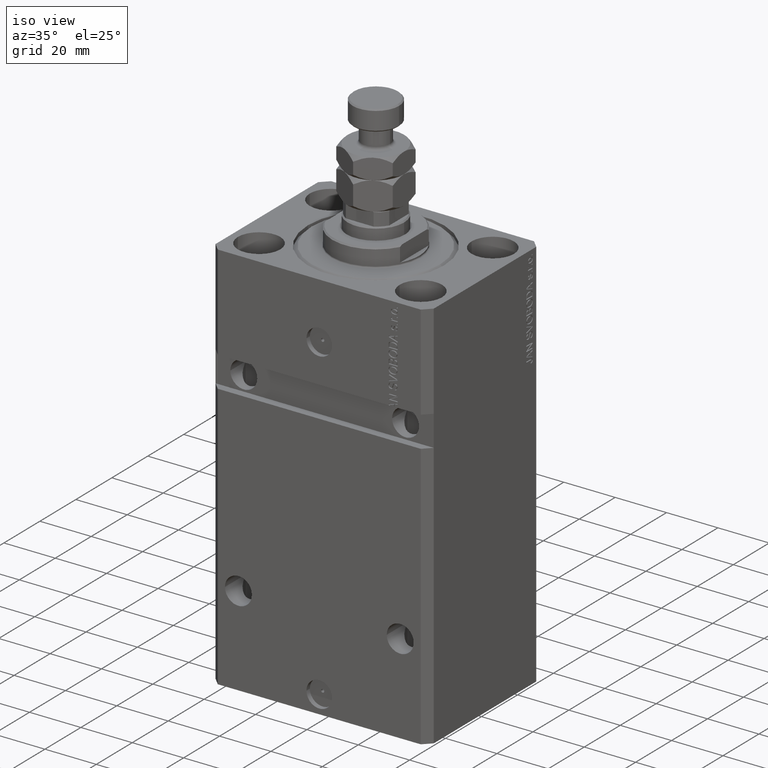
[diagram: clean part render]
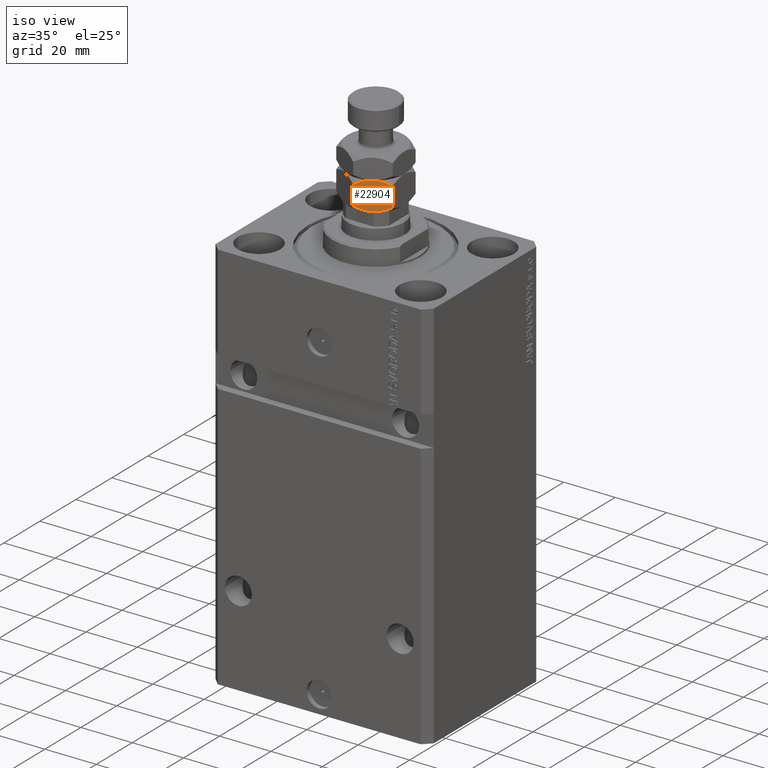
[diagram: same view with one face highlighted and labeled with its STEP entity id]
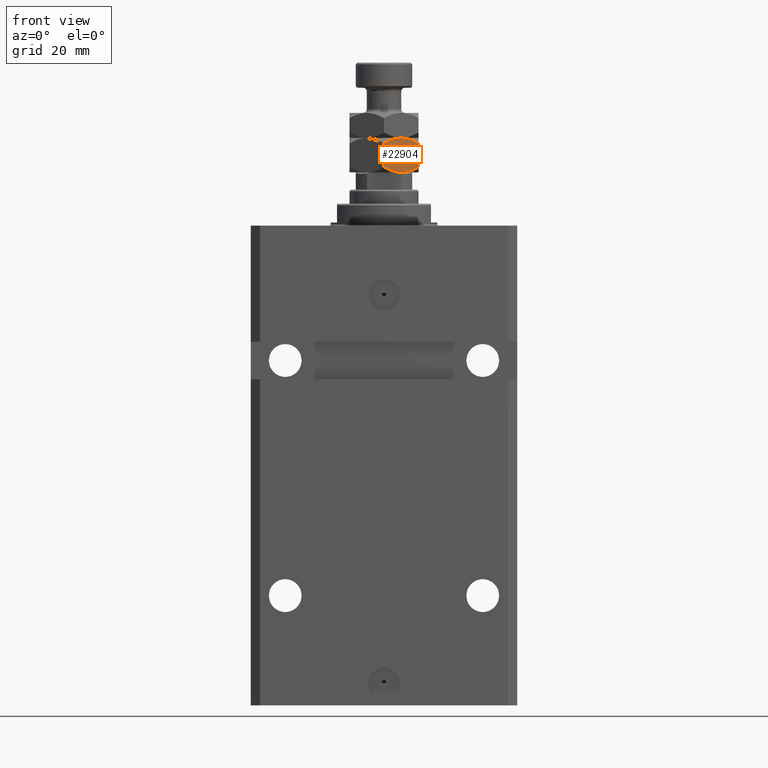
[diagram: same view with one face highlighted and labeled with its STEP entity id]
A machine part, iso view. The second image highlights one B-rep face of the part: STEP entity #22904.
A second angle (front view) of the same face is appended — the face is thin or edge-on in the first view.
In plain terms, the highlighted planar face has unit normal (-0.5, 0.866, 0).
Its self-contained STEP definition (entity closure, byte-faithful):
#343 = CARTESIAN_POINT ( 'NONE',  ( 3.602926119288148321, -10.62155555733041545, 0.1689086083647563796 ) ) ;
#587 = CARTESIAN_POINT ( 'NONE',  ( 4.543329525579419936, -10.07861339756131258, -1.661878642512936674E-15 ) ) ;
#981 = CARTESIAN_POINT ( 'NONE',  ( 3.115032419653385176, -10.90324111615047364, 10.67178078790959717 ) ) ;
#1207 = EDGE_CURVE ( 'NONE', #48517, #19265, #5165, .T. ) ;
#1685 = VERTEX_POINT ( 'NONE', #29080 ) ;
#4192 = DIRECTION ( 'NONE',  ( -0.8660254037844388186, -0.4999999999999996669, 0.000000000000000000 ) ) ;
#5165 = B_SPLINE_CURVE_WITH_KNOTS ( 'NONE', 3,
 ( #32550, #33042, #16955, #13673, #9169, #43886, #44371, #32299 ),
 .UNSPECIFIED., .F., .F.,
 ( 4, 2, 2, 4 ),
 ( 2.544311317612473652E-07, 0.003291871675740032539, 0.004937680298044168185, 0.006583488920348303831 ),
 .UNSPECIFIED. ) ;
#6621 = EDGE_CURVE ( 'NONE', #13686, #1685, #32428, .T. ) ;
#7048 = CARTESIAN_POINT ( 'NONE',  ( -2.168404344971008868E-15, -12.70170592217176342, 11.00000000000000000 ) ) ;
#9169 = CARTESIAN_POINT ( 'NONE',  ( 7.420105971005177992, -8.417705742396378810, 0.2081220748670716547 ) ) ;
#10306 = EDGE_CURVE ( 'NONE', #47500, #16959, #40520, .T. ) ;
#10511 = EDGE_CURVE ( 'NONE', #47500, #13686, #48357, .T. ) ;
#11485 = CARTESIAN_POINT ( 'NONE',  ( 5.499999999999994671, -9.526279441628823008, 11.00000000000000000 ) ) ;
#11914 = CARTESIAN_POINT ( 'NONE',  ( 11.00000000000000000, -6.350852961085885262, 11.00000000000000000 ) ) ;
#12798 = CARTESIAN_POINT ( 'NONE',  ( -1.735608132212364507E-15, -12.70170592217176342, 9.298294077828241910 ) ) ;
#13673 = CARTESIAN_POINT ( 'NONE',  ( 7.884967580346608607, -8.149317767107183030, 0.3282192120904023902 ) ) ;
#13686 = VERTEX_POINT ( 'NONE', #15410 ) ;
#15195 = CARTESIAN_POINT ( 'NONE',  ( 0.8614806024966409348, -12.20432986441868550, 1.204329864418603124 ) ) ;
#15410 = CARTESIAN_POINT ( 'NONE',  ( 5.499999999999994671, -9.526279441628823008, 11.00000000000000000 ) ) ;
#16955 = CARTESIAN_POINT ( 'NONE',  ( 9.255521992360788985, -7.358027808391763180, 0.7806233875467720740 ) ) ;
#16959 = VERTEX_POINT ( 'NONE', #46707 ) ;
#18796 = CARTESIAN_POINT ( 'NONE',  ( 10.13851939750335696, -6.848229018838962290, 9.795670135581396210 ) ) ;
#19265 = VERTEX_POINT ( 'NONE', #29526 ) ;
#21423 = ORIENTED_EDGE ( 'NONE', *, *, #10511, .F. ) ;
#22653 = ORIENTED_EDGE ( 'NONE', *, *, #1207, .F. ) ;
#22904 = ADVANCED_FACE ( 'NONE', ( #35363 ), #38649, .F. ) ;
#23236 = CARTESIAN_POINT ( 'NONE',  ( -2.056508384864602535E-15, -12.70170592217176342, 1.701705922171757868 ) ) ;
#23883 = CARTESIAN_POINT ( 'NONE',  ( 5.018290712253354435, -9.804394428580495813, 11.00000000000000178 ) ) ;
#24618 = CARTESIAN_POINT ( 'NONE',  ( 3.579894028994816235, -10.63485314086127431, 10.79187792513292798 ) ) ;
#24864 = CARTESIAN_POINT ( 'NONE',  ( 4.529374112020102316, -10.08667055933643475, 10.95634070256488179 ) ) ;
#26453 = ORIENTED_EDGE ( 'NONE', *, *, #38941, .F. ) ;
#27078 = CARTESIAN_POINT ( 'NONE',  ( 7.397073880711846350, -8.431003325927232339, 10.83109139163524404 ) ) ;
#28140 = CARTESIAN_POINT ( 'NONE',  ( 5.499999999999994671, -9.526279441628823008, 11.00000000000000000 ) ) ;
#29080 = CARTESIAN_POINT ( 'NONE',  ( 11.00000000000000000, -6.350852961085885262, 9.298294077828238358 ) ) ;
#29526 = CARTESIAN_POINT ( 'NONE',  ( 5.499999999999996447, -9.526279441628828337, 0.000000000000000000 ) ) ;
#29653 = ORIENTED_EDGE ( 'NONE', *, *, #10306, .T. ) ;
#29688 = DIRECTION ( 'NONE',  ( -0.000000000000000000, -0.000000000000000000, -1.000000000000000000 ) ) ;
#31425 = CARTESIAN_POINT ( 'NONE',  ( 11.00000000000000000, -6.350852961085885262, 1.701705922171761864 ) ) ;
#32072 = DIRECTION ( 'NONE',  ( -0.4999999999999996669, 0.8660254037844388186, 0.000000000000000000 ) ) ;
#32299 = CARTESIAN_POINT ( 'NONE',  ( 5.499999999999996447, -9.526279441628828337, 0.000000000000000000 ) ) ;
#32428 = B_SPLINE_CURVE_WITH_KNOTS ( 'NONE', 3,
 ( #11485, #42670, #27078, #38656, #18796, #41932 ),
 .UNSPECIFIED., .F., .F.,
 ( 4, 2, 4 ),
 ( 0.006583488920348296025, 0.009852050593448711396, 0.01312061226654912677 ),
 .UNSPECIFIED. ) ;
#32550 = CARTESIAN_POINT ( 'NONE',  ( 11.00000000000000000, -6.350852961085885262, 1.701705922171761864 ) ) ;
#33042 = CARTESIAN_POINT ( 'NONE',  ( 10.13752086928278118, -6.848805519375901874, 1.203753363881747029 ) ) ;
#34061 = VECTOR ( 'NONE', #29688, 1000.000000000000000 ) ;
#34558 = CARTESIAN_POINT ( 'NONE',  ( 5.499999999999996447, -9.526279441628828337, 0.000000000000000000 ) ) ;
#34975 = B_SPLINE_CURVE_WITH_KNOTS ( 'NONE', 3,
 ( #34558, #587, #343, #49651, #15195, #23236 ),
 .UNSPECIFIED., .F., .F.,
 ( 4, 2, 4 ),
 ( 0.006583488920348303831, 0.009852050593448714866, 0.01312061226654912503 ),
 .UNSPECIFIED. ) ;
#35363 = FACE_OUTER_BOUND ( 'NONE', #43903, .T. ) ;
#35618 = CARTESIAN_POINT ( 'NONE',  ( -2.168404344971008868E-15, -12.70170592217176342, 11.00000000000000000 ) ) ;
#37570 = ORIENTED_EDGE ( 'NONE', *, *, #47203, .F. ) ;
#38649 = PLANE ( 'NONE',  #39261 ) ;
#38656 = CARTESIAN_POINT ( 'NONE',  ( 9.251785468064188223, -7.360185091700238935, 10.22231519547797163 ) ) ;
#38941 = EDGE_CURVE ( 'NONE', #1685, #48517, #39830, .T. ) ;
#39261 = AXIS2_PLACEMENT_3D ( 'NONE', #35618, #32072, #4192 ) ;
#39830 = LINE ( 'NONE', #11914, #43731 ) ;
#40063 = DIRECTION ( 'NONE',  ( -0.000000000000000000, -0.000000000000000000, -1.000000000000000000 ) ) ;
#40208 = CARTESIAN_POINT ( 'NONE',  ( 1.744478007639205241, -11.69453107486588728, 10.21937661245323170 ) ) ;
#40520 = LINE ( 'NONE', #7048, #34061 ) ;
#41932 = CARTESIAN_POINT ( 'NONE',  ( 11.00000000000000000, -6.350852961085885262, 9.298294077828238358 ) ) ;
#42670 = CARTESIAN_POINT ( 'NONE',  ( 6.456670474420572070, -8.973945485696336988, 11.00000000000000711 ) ) ;
#43019 = CARTESIAN_POINT ( 'NONE',  ( 0.8624791307172111621, -12.20375336388174503, 9.796246636118258522 ) ) ;
#43731 = VECTOR ( 'NONE', #40063, 1000.000000000000000 ) ;
#43886 = CARTESIAN_POINT ( 'NONE',  ( 6.470625887979890578, -8.965888323921214820, 0.04365929743512345085 ) ) ;
#43903 = EDGE_LOOP ( 'NONE', ( #22653, #26453, #45255, #21423, #29653, #37570 ) ) ;
#44371 = CARTESIAN_POINT ( 'NONE',  ( 5.981709287746637571, -9.248164454677159085, -1.733029410082298494E-15 ) ) ;
#45255 = ORIENTED_EDGE ( 'NONE', *, *, #6621, .F. ) ;
#46584 = CARTESIAN_POINT ( 'NONE',  ( -1.735608132212364507E-15, -12.70170592217176342, 9.298294077828241910 ) ) ;
#46707 = CARTESIAN_POINT ( 'NONE',  ( -2.056508384864602535E-15, -12.70170592217176342, 1.701705922171757868 ) ) ;
#47203 = EDGE_CURVE ( 'NONE', #19265, #16959, #34975, .T. ) ;
#47500 = VERTEX_POINT ( 'NONE', #46584 ) ;
#48357 = B_SPLINE_CURVE_WITH_KNOTS ( 'NONE', 3,
 ( #12798, #43019, #40208, #981, #24618, #24864, #23883, #28140 ),
 .UNSPECIFIED., .F., .F.,
 ( 4, 2, 2, 4 ),
 ( 2.544311317609507449E-07, 0.003291871675740027335, 0.004937680298044161246, 0.006583488920348296025 ),
 .UNSPECIFIED. ) ;
#48517 = VERTEX_POINT ( 'NONE', #31425 ) ;
#49651 = CARTESIAN_POINT ( 'NONE',  ( 1.748214531935804672, -11.69237379155741330, 0.7776848045220248196 ) ) ;